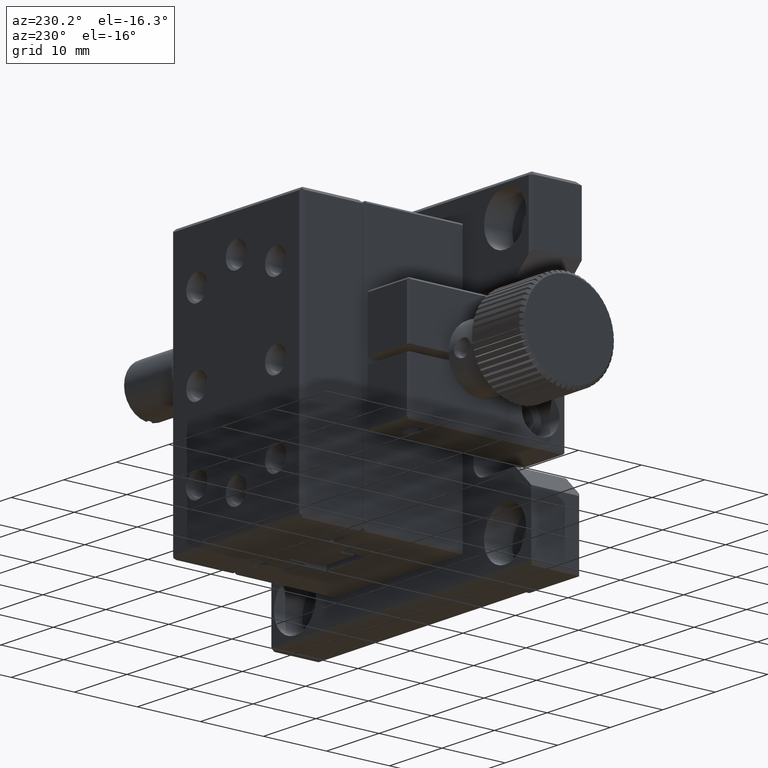
[diagram: clean part render]
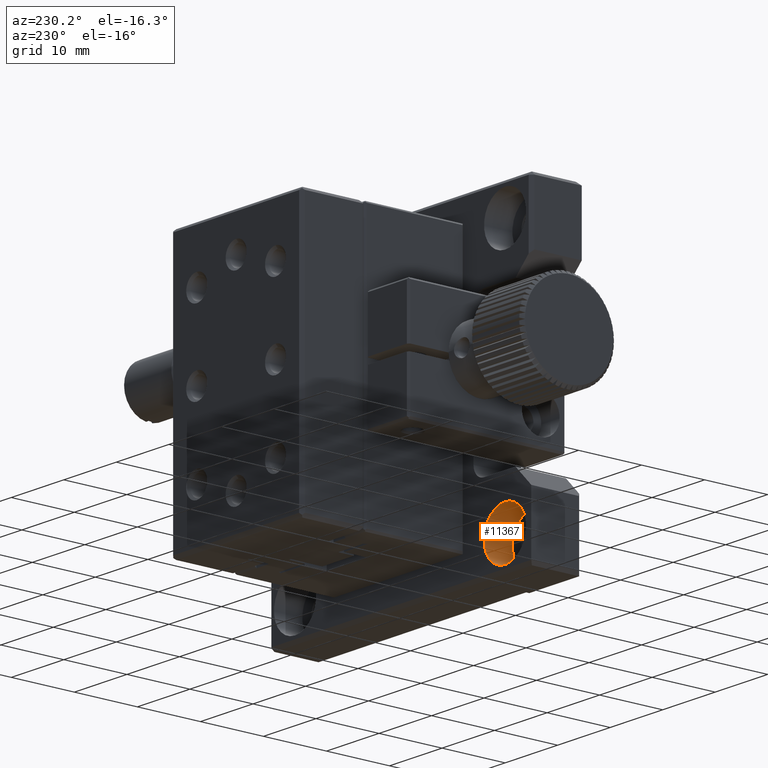
[diagram: same view with one face highlighted and labeled with its STEP entity id]
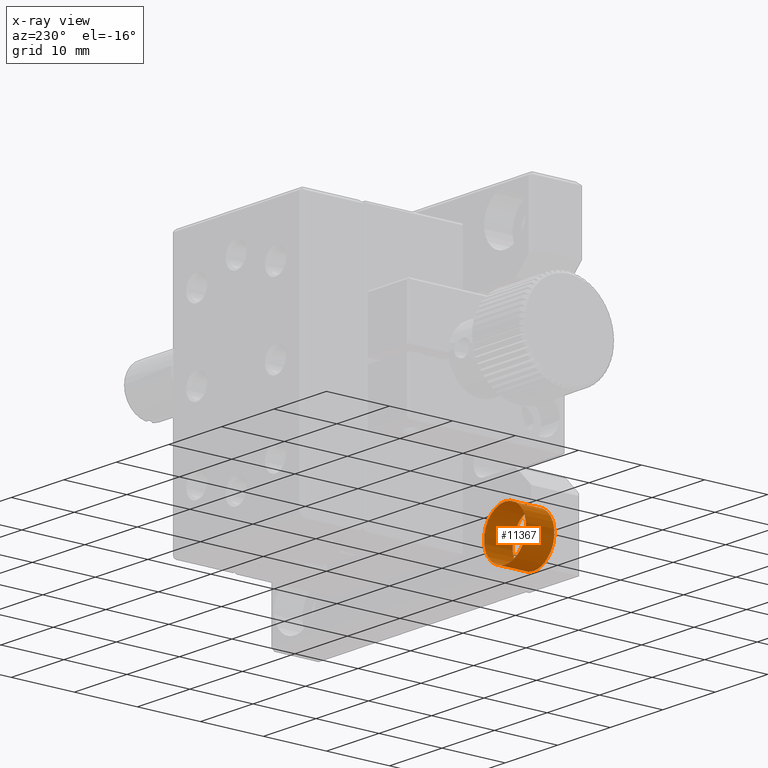
[diagram: x-ray of the same camera — body ghosted, the highlighted face saturated]
A machine part, auxiliary view. The second image highlights one B-rep face of the part: STEP entity #11367.
The next image is the same camera in x-ray: the body ghosted, the highlighted face saturated — about 0% of this face is hidden behind the body in this view.
In plain terms, the highlighted cylindrical surface (bore or boss wall) has radius 4 mm, axis along (0, 1, 0).
Its self-contained STEP definition (entity closure, byte-faithful):
#767 = CARTESIAN_POINT ( 'NONE',  ( -20.00000000000000000, -4.500000000000000888, -20.00000000000000000 ) ) ;
#1991 = DIRECTION ( 'NONE',  ( 0.000000000000000000, 0.000000000000000000, 1.000000000000000000 ) ) ;
#1995 = EDGE_LOOP ( 'NONE', ( #3076 ) ) ;
#2639 = VERTEX_POINT ( 'NONE', #6072 ) ;
#2697 = DIRECTION ( 'NONE',  ( -0.000000000000000000, -1.000000000000000000, -0.000000000000000000 ) ) ;
#3076 = ORIENTED_EDGE ( 'NONE', *, *, #6360, .F. ) ;
#3931 = CARTESIAN_POINT ( 'NONE',  ( -20.00000000000000000, 0.000000000000000000, -20.00000000000000000 ) ) ;
#3955 = FACE_OUTER_BOUND ( 'NONE', #1995, .T. ) ;
#4095 = VERTEX_POINT ( 'NONE', #11822 ) ;
#4922 = AXIS2_PLACEMENT_3D ( 'NONE', #15208, #9839, #11260 ) ;
#5169 = CIRCLE ( 'NONE', #14352, 4.000000000000000000 ) ;
#6072 = CARTESIAN_POINT ( 'NONE',  ( -20.00000000000000000, -4.500000000000000888, -16.00000000000000000 ) ) ;
#6360 = EDGE_CURVE ( 'NONE', #2639, #2639, #5169, .T. ) ;
#8503 = EDGE_LOOP ( 'NONE', ( #15306 ) ) ;
#9227 = EDGE_CURVE ( 'NONE', #4095, #4095, #11995, .T. ) ;
#9839 = DIRECTION ( 'NONE',  ( 0.000000000000000000, 1.000000000000000000, 0.000000000000000000 ) ) ;
#10681 = AXIS2_PLACEMENT_3D ( 'NONE', #3931, #2697, #12631 ) ;
#11260 = DIRECTION ( 'NONE',  ( 0.000000000000000000, 0.000000000000000000, 1.000000000000000000 ) ) ;
#11367 = ADVANCED_FACE ( 'NONE', ( #16174, #3955 ), #12327, .F. ) ;
#11822 = CARTESIAN_POINT ( 'NONE',  ( -20.00000000000000000, 0.000000000000000000, -16.00000000000000000 ) ) ;
#11995 = CIRCLE ( 'NONE', #10681, 4.000000000000000000 ) ;
#12327 = CYLINDRICAL_SURFACE ( 'NONE', #4922, 4.000000000000000000 ) ;
#12631 = DIRECTION ( 'NONE',  ( 0.000000000000000000, 0.000000000000000000, 1.000000000000000000 ) ) ;
#14352 = AXIS2_PLACEMENT_3D ( 'NONE', #767, #15712, #1991 ) ;
#15208 = CARTESIAN_POINT ( 'NONE',  ( -20.00000000000000000, -4.500000000000000888, -20.00000000000000000 ) ) ;
#15306 = ORIENTED_EDGE ( 'NONE', *, *, #9227, .F. ) ;
#15712 = DIRECTION ( 'NONE',  ( 0.000000000000000000, 1.000000000000000000, 0.000000000000000000 ) ) ;
#16174 = FACE_OUTER_BOUND ( 'NONE', #8503, .T. ) ;